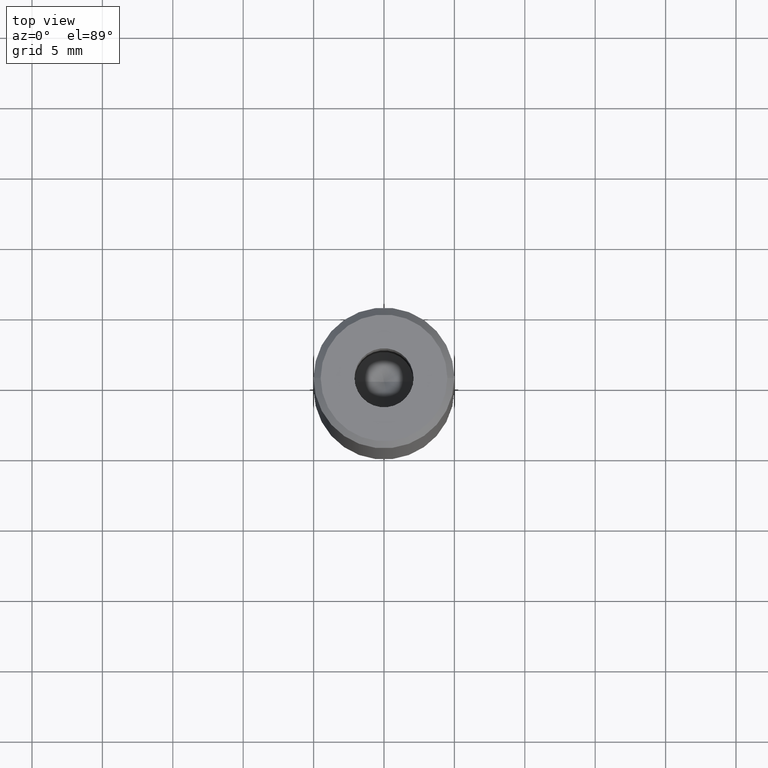
[diagram: clean part render]
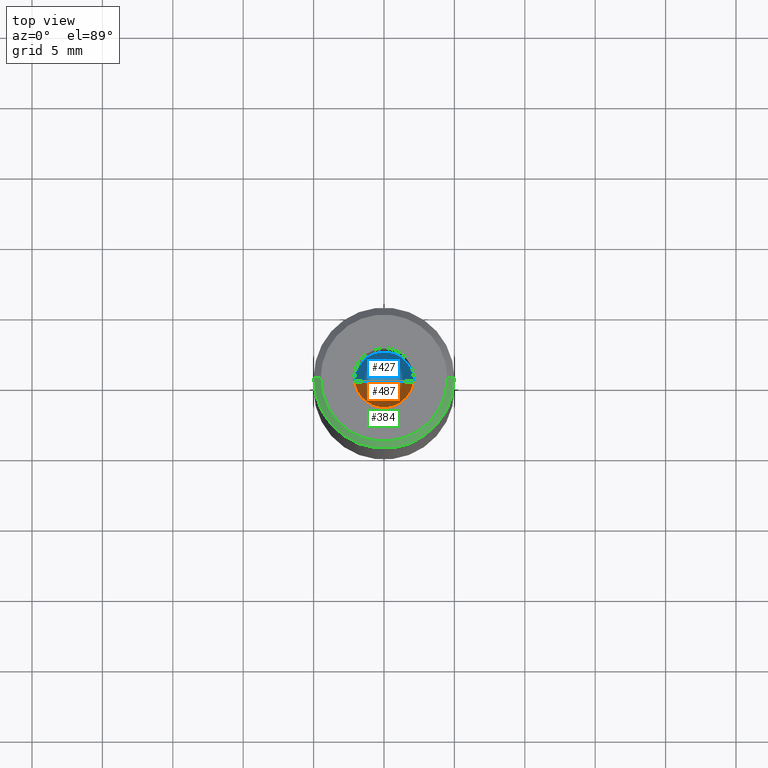
[diagram: same view with three faces highlighted in distinct colors, each labeled with its STEP entity id]
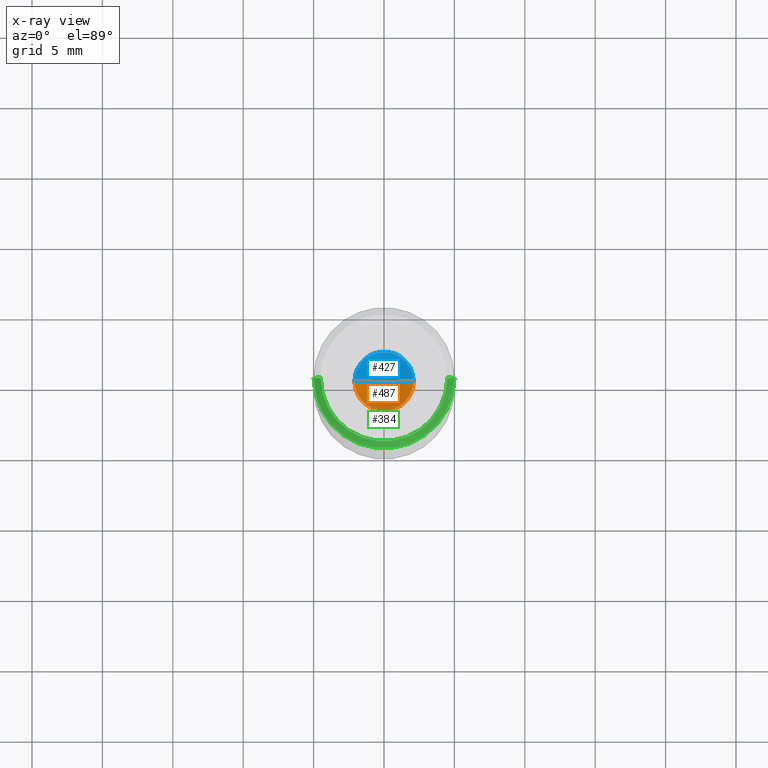
[diagram: x-ray of the same camera — body ghosted, the three highlighted faces saturated]
A machine part, top view with three faces highlighted in distinct colors.
The next image is the same camera in x-ray (body ghosted, the three faces saturated) — at least one of them is partly hidden behind the body in this view.
Their STEP definitions:

[orange] entity #487 — the highlighted conical surface has half-angle 59 deg.
#16 = EDGE_CURVE ( 'NONE', #561, #379, #352, .T. ) ;
#72 = EDGE_CURVE ( 'NONE', #335, #379, #247, .T. ) ;
#141 = ORIENTED_EDGE ( 'NONE', *, *, #578, .T. ) ;
#163 = AXIS2_PLACEMENT_3D ( 'NONE', #566, #463, #202 ) ;
#176 = DIRECTION ( 'NONE',  ( 1.000000000000000000, 0.000000000000000000, 0.000000000000000000 ) ) ;
#196 = FACE_OUTER_BOUND ( 'NONE', #281, .T. ) ;
#202 = DIRECTION ( 'NONE',  ( 1.000000000000000000, 0.000000000000000000, 0.000000000000000000 ) ) ;
#215 = CARTESIAN_POINT ( 'NONE',  ( 2.099999999999996980, 0.000000000000000000, -15.00000000000000000 ) ) ;
#239 = ORIENTED_EDGE ( 'NONE', *, *, #16, .F. ) ;
#247 = CIRCLE ( 'NONE', #534, 2.099999999999996980 ) ;
#281 = EDGE_LOOP ( 'NONE', ( #239, #141, #338 ) ) ;
#335 = VERTEX_POINT ( 'NONE', #353 ) ;
#338 = ORIENTED_EDGE ( 'NONE', *, *, #72, .T. ) ;
#346 = DIRECTION ( 'NONE',  ( -0.8571673007021113344, 1.049727191138617463E-16, 0.5150380749100558209 ) ) ;
#352 = LINE ( 'NONE', #215, #505 ) ;
#353 = CARTESIAN_POINT ( 'NONE',  ( -2.099999999999996980, 2.571758278209438013E-16, -15.00000000000000000 ) ) ;
#363 = VECTOR ( 'NONE', #346, 1000.000000000000000 ) ;
#379 = VERTEX_POINT ( 'NONE', #500 ) ;
#388 = LINE ( 'NONE', #432, #363 ) ;
#432 = CARTESIAN_POINT ( 'NONE',  ( -2.099999999999996980, 2.571758278209438013E-16, -15.00000000000000000 ) ) ;
#449 = CARTESIAN_POINT ( 'NONE',  ( 0.000000000000000000, 0.000000000000000000, -15.00000000000000000 ) ) ;
#463 = DIRECTION ( 'NONE',  ( -0.000000000000000000, -0.000000000000000000, 1.000000000000000000 ) ) ;
#471 = CARTESIAN_POINT ( 'NONE',  ( -3.982994051648894933E-15, 0.000000000000000000, -16.26180729995787644 ) ) ;
#487 = ADVANCED_FACE ( 'NONE', ( #196 ), #524, .F. ) ;
#491 = DIRECTION ( 'NONE',  ( -0.000000000000000000, -0.000000000000000000, 1.000000000000000000 ) ) ;
#500 = CARTESIAN_POINT ( 'NONE',  ( 2.099999999999996980, 0.000000000000000000, -15.00000000000000000 ) ) ;
#505 = VECTOR ( 'NONE', #582, 1000.000000000000000 ) ;
#524 = CONICAL_SURFACE ( 'NONE', #163, 2.099999999999996980, 1.029744258676652535 ) ;
#534 = AXIS2_PLACEMENT_3D ( 'NONE', #449, #491, #176 ) ;
#561 = VERTEX_POINT ( 'NONE', #471 ) ;
#566 = CARTESIAN_POINT ( 'NONE',  ( 0.000000000000000000, 0.000000000000000000, -15.00000000000000000 ) ) ;
#578 = EDGE_CURVE ( 'NONE', #561, #335, #388, .T. ) ;
#582 = DIRECTION ( 'NONE',  ( 0.8571673007021113344, 0.000000000000000000, 0.5150380749100558209 ) ) ;

[blue] entity #427 — the highlighted conical surface has half-angle 59 deg.
#16 = EDGE_CURVE ( 'NONE', #561, #379, #352, .T. ) ;
#18 = ORIENTED_EDGE ( 'NONE', *, *, #101, .T. ) ;
#23 = DIRECTION ( 'NONE',  ( -0.000000000000000000, -0.000000000000000000, 1.000000000000000000 ) ) ;
#101 = EDGE_CURVE ( 'NONE', #379, #335, #484, .T. ) ;
#133 = DIRECTION ( 'NONE',  ( -0.000000000000000000, -0.000000000000000000, 1.000000000000000000 ) ) ;
#215 = CARTESIAN_POINT ( 'NONE',  ( 2.099999999999996980, 0.000000000000000000, -15.00000000000000000 ) ) ;
#219 = CARTESIAN_POINT ( 'NONE',  ( 0.000000000000000000, 0.000000000000000000, -15.00000000000000000 ) ) ;
#335 = VERTEX_POINT ( 'NONE', #353 ) ;
#344 = DIRECTION ( 'NONE',  ( 1.000000000000000000, 0.000000000000000000, 0.000000000000000000 ) ) ;
#346 = DIRECTION ( 'NONE',  ( -0.8571673007021113344, 1.049727191138617463E-16, 0.5150380749100558209 ) ) ;
#352 = LINE ( 'NONE', #215, #505 ) ;
#353 = CARTESIAN_POINT ( 'NONE',  ( -2.099999999999996980, 2.571758278209438013E-16, -15.00000000000000000 ) ) ;
#363 = VECTOR ( 'NONE', #346, 1000.000000000000000 ) ;
#379 = VERTEX_POINT ( 'NONE', #500 ) ;
#388 = LINE ( 'NONE', #432, #363 ) ;
#413 = CONICAL_SURFACE ( 'NONE', #457, 2.099999999999996980, 1.029744258676652535 ) ;
#427 = ADVANCED_FACE ( 'NONE', ( #519 ), #413, .F. ) ;
#432 = CARTESIAN_POINT ( 'NONE',  ( -2.099999999999996980, 2.571758278209438013E-16, -15.00000000000000000 ) ) ;
#447 = AXIS2_PLACEMENT_3D ( 'NONE', #219, #133, #344 ) ;
#457 = AXIS2_PLACEMENT_3D ( 'NONE', #509, #23, #473 ) ;
#471 = CARTESIAN_POINT ( 'NONE',  ( -3.982994051648894933E-15, 0.000000000000000000, -16.26180729995787644 ) ) ;
#473 = DIRECTION ( 'NONE',  ( 1.000000000000000000, 0.000000000000000000, 0.000000000000000000 ) ) ;
#474 = ORIENTED_EDGE ( 'NONE', *, *, #578, .F. ) ;
#484 = CIRCLE ( 'NONE', #447, 2.099999999999996980 ) ;
#500 = CARTESIAN_POINT ( 'NONE',  ( 2.099999999999996980, 0.000000000000000000, -15.00000000000000000 ) ) ;
#502 = EDGE_LOOP ( 'NONE', ( #474, #512, #18 ) ) ;
#505 = VECTOR ( 'NONE', #582, 1000.000000000000000 ) ;
#509 = CARTESIAN_POINT ( 'NONE',  ( 0.000000000000000000, 0.000000000000000000, -15.00000000000000000 ) ) ;
#512 = ORIENTED_EDGE ( 'NONE', *, *, #16, .T. ) ;
#519 = FACE_OUTER_BOUND ( 'NONE', #502, .T. ) ;
#561 = VERTEX_POINT ( 'NONE', #471 ) ;
#578 = EDGE_CURVE ( 'NONE', #561, #335, #388, .T. ) ;
#582 = DIRECTION ( 'NONE',  ( 0.8571673007021113344, 0.000000000000000000, 0.5150380749100558209 ) ) ;

[green] entity #384 — the highlighted conical surface has half-angle 45 deg.
#3 = EDGE_CURVE ( 'NONE', #243, #295, #67, .T. ) ;
#21 = LINE ( 'NONE', #238, #201 ) ;
#43 = CARTESIAN_POINT ( 'NONE',  ( 5.000000000000000000, 0.000000000000000000, -0.4999999999999995559 ) ) ;
#67 = CIRCLE ( 'NONE', #359, 4.499999999999997335 ) ;
#70 = ORIENTED_EDGE ( 'NONE', *, *, #451, .T. ) ;
#90 = CARTESIAN_POINT ( 'NONE',  ( 0.000000000000000000, 0.000000000000000000, 0.000000000000000000 ) ) ;
#104 = VERTEX_POINT ( 'NONE', #400 ) ;
#111 = VERTEX_POINT ( 'NONE', #43 ) ;
#135 = AXIS2_PLACEMENT_3D ( 'NONE', #90, #274, #531 ) ;
#139 = FACE_OUTER_BOUND ( 'NONE', #520, .T. ) ;
#148 = CARTESIAN_POINT ( 'NONE',  ( 0.000000000000000000, 0.000000000000000000, -0.4999999999999995559 ) ) ;
#158 = CARTESIAN_POINT ( 'NONE',  ( 0.000000000000000000, 0.000000000000000000, 0.000000000000000000 ) ) ;
#165 = ORIENTED_EDGE ( 'NONE', *, *, #302, .F. ) ;
#193 = ORIENTED_EDGE ( 'NONE', *, *, #3, .F. ) ;
#201 = VECTOR ( 'NONE', #468, 1000.000000000000114 ) ;
#209 = VECTOR ( 'NONE', #547, 1000.000000000000114 ) ;
#234 = ORIENTED_EDGE ( 'NONE', *, *, #496, .F. ) ;
#238 = CARTESIAN_POINT ( 'NONE',  ( -4.499999999999997335, 0.000000000000000000, 0.000000000000000000 ) ) ;
#243 = VERTEX_POINT ( 'NONE', #489 ) ;
#274 = DIRECTION ( 'NONE',  ( 0.000000000000000000, 0.000000000000000000, -1.000000000000000000 ) ) ;
#290 = DIRECTION ( 'NONE',  ( -0.000000000000000000, -0.000000000000000000, 1.000000000000000000 ) ) ;
#295 = VERTEX_POINT ( 'NONE', #313 ) ;
#302 = EDGE_CURVE ( 'NONE', #295, #111, #583, .T. ) ;
#313 = CARTESIAN_POINT ( 'NONE',  ( 4.499999999999997335, 5.817072295949926440E-16, 0.000000000000000000 ) ) ;
#324 = AXIS2_PLACEMENT_3D ( 'NONE', #148, #430, #521 ) ;
#359 = AXIS2_PLACEMENT_3D ( 'NONE', #158, #290, #472 ) ;
#384 = ADVANCED_FACE ( 'NONE', ( #139 ), #546, .T. ) ;
#400 = CARTESIAN_POINT ( 'NONE',  ( -5.000000000000000000, 6.123233995736766282E-16, -0.4999999999999995559 ) ) ;
#408 = CARTESIAN_POINT ( 'NONE',  ( 4.499999999999997335, 5.510910596163085611E-16, 0.000000000000000000 ) ) ;
#430 = DIRECTION ( 'NONE',  ( 0.000000000000000000, 0.000000000000000000, -1.000000000000000000 ) ) ;
#451 = EDGE_CURVE ( 'NONE', #243, #104, #21, .T. ) ;
#468 = DIRECTION ( 'NONE',  ( -0.7071067811865500152, 0.000000000000000000, -0.7071067811865451302 ) ) ;
#472 = DIRECTION ( 'NONE',  ( 1.000000000000000000, 0.000000000000000000, 0.000000000000000000 ) ) ;
#489 = CARTESIAN_POINT ( 'NONE',  ( -4.499999999999997335, 0.000000000000000000, 0.000000000000000000 ) ) ;
#496 = EDGE_CURVE ( 'NONE', #111, #104, #498, .T. ) ;
#498 = CIRCLE ( 'NONE', #324, 5.000000000000000000 ) ;
#520 = EDGE_LOOP ( 'NONE', ( #165, #193, #70, #234 ) ) ;
#521 = DIRECTION ( 'NONE',  ( 1.000000000000000000, 0.000000000000000000, 0.000000000000000000 ) ) ;
#531 = DIRECTION ( 'NONE',  ( -1.000000000000000000, 0.000000000000000000, 0.000000000000000000 ) ) ;
#546 = CONICAL_SURFACE ( 'NONE', #135, 4.499999999999997335, 0.7853981633974517207 ) ;
#547 = DIRECTION ( 'NONE',  ( 0.7071067811865500152, 8.659560562354962440E-17, -0.7071067811865451302 ) ) ;
#583 = LINE ( 'NONE', #408, #209 ) ;